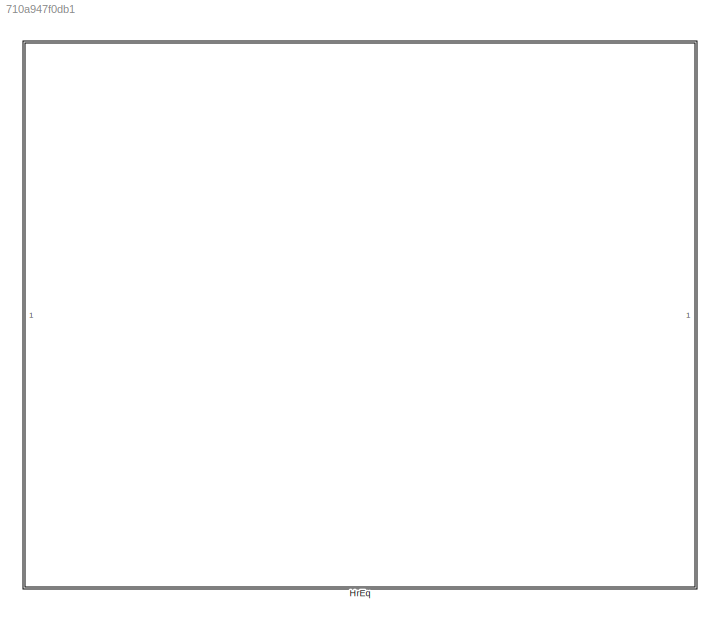
MODEL slx_710a947f0db1
KIND library
CONFIG AbsTol = auto
CONFIG EnableMultiTasking = off
CONFIG FixedStep = auto
CONFIG MaxStep = auto
CONFIG MinStep = auto
CONFIG RelTol = 1e-3
CONFIG SampleTimeConstraint = Unconstrained
CONFIG SolverName = VariableStepAuto
CONFIG StartTime = 0.0
CONFIG StopTime = 10.0
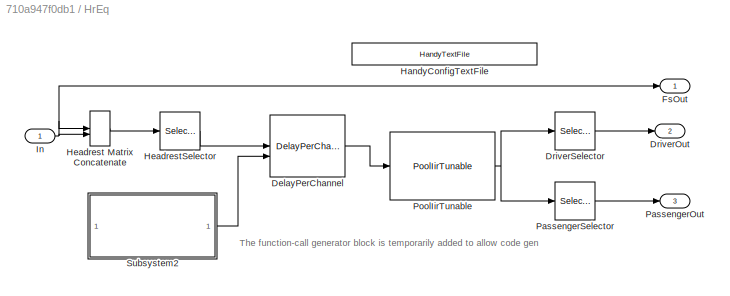
BLOCK [SubSystem] HrEq
BLOCK [Reference] HrEq/DelayPerChannel  REF=TunableDelayBtc/DelayPerChannel
  SourceBlock = TunableDelayBtc/DelayPerChannel
  SourceProductName = Bose Blocklib
  SourceType = Blocklib DelayPerChannel
BLOCK [Outport] HrEq/DriverOut
  Port = 2
  VectorParamsAs1DForOutWhenUnconnected = off
BLOCK [Selector] HrEq/DriverSelector
  IndexOptions = Select all,Index vector (dialog)
  Indices = [1 7],[1:Config.AnnChannelCount]
  InputPortWidth = 3
  NumberOfDimensions = 2
  OutputSizes = 1,1
BLOCK [Outport] HrEq/FsOut
  VectorParamsAs1DForOutWhenUnconnected = off
BLOCK [Reference] HrEq/HandyConfigTextFile  REF=HandyTextFile/HandyTextFile
  SourceBlock = HandyTextFile/HandyTextFile
  SourceProductName = Bose Talaria
  SourceType = Talaria Handy Text File
BLOCK [Concatenate] HrEq/Headrest Matrix Concatenate
  ConcatenateDimension = 2
  Mode = Multidimensional array
BLOCK [Selector] HrEq/HeadrestSelector
  IndexOptions = Select all,Index vector (dialog)
  Indices = [1 7],[1:Config.NumHeadrestSpeakers*Config.AnnChannelCount]
  InputPortWidth = 3
  NumberOfDimensions = 2
  OutputSizes = 1,1
BLOCK [Inport] HrEq/In
BLOCK [Outport] HrEq/PassengerOut 
  Port = 3
  VectorParamsAs1DForOutWhenUnconnected = off
BLOCK [Selector] HrEq/PassengerSelector
  IndexOptions = Select all,Index vector (dialog)
  Indices = [1 7],[(Config.NumHeadrestSpeakers-1)*(Config.AnnChannelCount)+1:Config.NumHeadrestSpeakers*Config.AnnChannelCount]
  InputPortWidth = 3
  NumberOfDimensions = 2
  OutputSizes = 1,1
BLOCK [Reference] HrEq/PoolIirTunable  REF=PoolIir/PoolIirTunable
  SourceBlock = PoolIir/PoolIirTunable
  SourceType = Bose Pool IIR Tunable
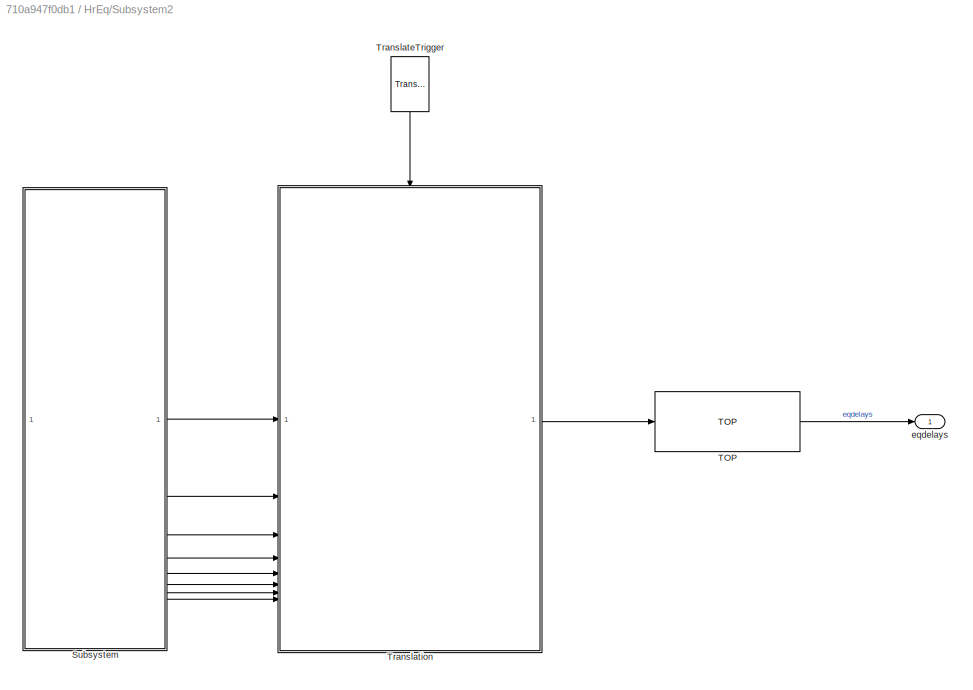
BLOCK [SubSystem] HrEq/Subsystem2
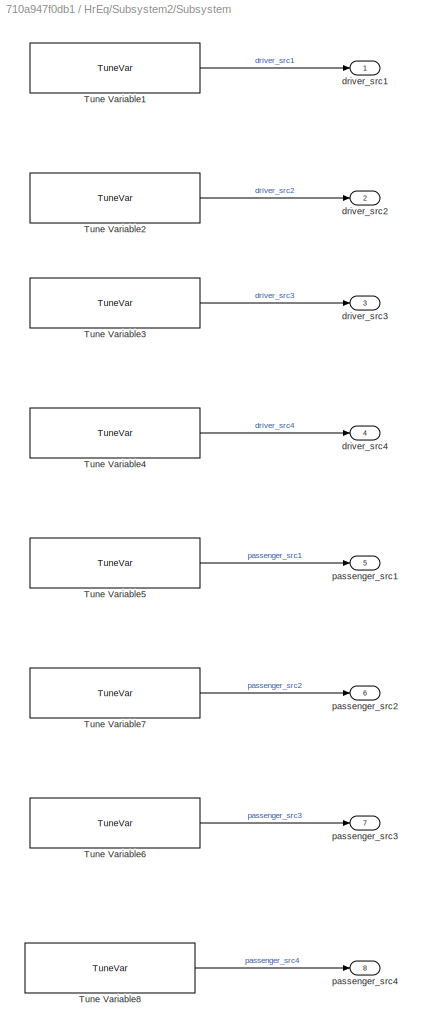
BLOCK [SubSystem] HrEq/Subsystem2/Subsystem
BLOCK [Reference] HrEq/Subsystem2/Subsystem/Tune Variable1  REF=TuneVar/TuneVar
  SourceBlock = TuneVar/TuneVar
  SourceProductName = Bose Talaria
  SourceType = Talaria Tune Variable
BLOCK [Reference] HrEq/Subsystem2/Subsystem/Tune Variable2  REF=TuneVar/TuneVar
  SourceBlock = TuneVar/TuneVar
  SourceProductName = Bose Talaria
  SourceType = Talaria Tune Variable
BLOCK [Reference] HrEq/Subsystem2/Subsystem/Tune Variable3  REF=TuneVar/TuneVar
  SourceBlock = TuneVar/TuneVar
  SourceProductName = Bose Talaria
  SourceType = Talaria Tune Variable
BLOCK [Reference] HrEq/Subsystem2/Subsystem/Tune Variable4  REF=TuneVar/TuneVar
  SourceBlock = TuneVar/TuneVar
  SourceProductName = Bose Talaria
  SourceType = Talaria Tune Variable
BLOCK [Reference] HrEq/Subsystem2/Subsystem/Tune Variable5  REF=TuneVar/TuneVar
  SourceBlock = TuneVar/TuneVar
  SourceProductName = Bose Talaria
  SourceType = Talaria Tune Variable
BLOCK [Reference] HrEq/Subsystem2/Subsystem/Tune Variable6  REF=TuneVar/TuneVar
  SourceBlock = TuneVar/TuneVar
  SourceProductName = Bose Talaria
  SourceType = Talaria Tune Variable
BLOCK [Reference] HrEq/Subsystem2/Subsystem/Tune Variable7  REF=TuneVar/TuneVar
  SourceBlock = TuneVar/TuneVar
  SourceProductName = Bose Talaria
  SourceType = Talaria Tune Variable
BLOCK [Reference] HrEq/Subsystem2/Subsystem/Tune Variable8  REF=TuneVar/TuneVar
  SourceBlock = TuneVar/TuneVar
  SourceProductName = Bose Talaria
  SourceType = Talaria Tune Variable
BLOCK [Outport] HrEq/Subsystem2/Subsystem/driver_src1
BLOCK [Outport] HrEq/Subsystem2/Subsystem/driver_src2
  Port = 2
BLOCK [Outport] HrEq/Subsystem2/Subsystem/driver_src3
  Port = 3
BLOCK [Outport] HrEq/Subsystem2/Subsystem/driver_src4
  Port = 4
BLOCK [Outport] HrEq/Subsystem2/Subsystem/passenger_src1
  Port = 5
BLOCK [Outport] HrEq/Subsystem2/Subsystem/passenger_src2
  Port = 6
BLOCK [Outport] HrEq/Subsystem2/Subsystem/passenger_src3
  Port = 7
BLOCK [Outport] HrEq/Subsystem2/Subsystem/passenger_src4
  Port = 8
BLOCK [Reference] HrEq/Subsystem2/TOP  REF=TOP/TOP
  SourceBlock = TOP/TOP
  SourceProductName = Bose Talaria
  SourceType = Talaria Target Overlay Parameter
BLOCK [Reference] HrEq/Subsystem2/TranslateTrigger  REF=TuneVar/TranslateTrigger
  NameLocation = left
  SourceBlock = TuneVar/TranslateTrigger
  SourceProductName = Bose Talaria
  SourceType = Talaria Translate Trigger
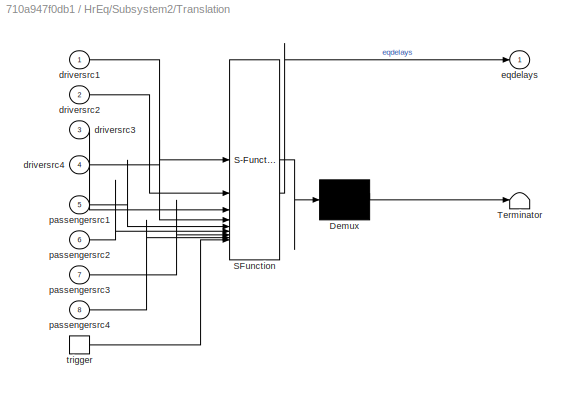
BLOCK [SubSystem] HrEq/Subsystem2/Translation
  ErrorFcn = Stateflow.Translate.translate
  PermitHierarchicalResolution = ExplicitOnly
  SFBlockType = MATLAB Function
  TreatAsAtomicUnit = on
BLOCK [Demux] HrEq/Subsystem2/Translation/ Demux 
  Outputs = 1
BLOCK [S-Function] HrEq/Subsystem2/Translation/ SFunction 
  EnableBusSupport = off
  FunctionName = sf_sfun
  Parameters = AnnChannelCount,NumHeadrestSpeakers
  PortCounts = [9 2]
  SFcnIsStateOwnerBlock = off
  SFunctionDeploymentMode = off
  Tag = Stateflow S-Function 1
BLOCK [Terminator] HrEq/Subsystem2/Translation/ Terminator 
BLOCK [Inport] HrEq/Subsystem2/Translation/driversrc1
BLOCK [Inport] HrEq/Subsystem2/Translation/driversrc2
  Port = 2
BLOCK [Inport] HrEq/Subsystem2/Translation/driversrc3
  Port = 3
BLOCK [Inport] HrEq/Subsystem2/Translation/driversrc4
  Port = 4
BLOCK [Outport] HrEq/Subsystem2/Translation/eqdelays
  VectorParamsAs1DForOutWhenUnconnected = off
BLOCK [Inport] HrEq/Subsystem2/Translation/passengersrc1
  Port = 5
BLOCK [Inport] HrEq/Subsystem2/Translation/passengersrc2
  Port = 6
BLOCK [Inport] HrEq/Subsystem2/Translation/passengersrc3
  Port = 7
BLOCK [Inport] HrEq/Subsystem2/Translation/passengersrc4
  Port = 8
BLOCK [TriggerPort] HrEq/Subsystem2/Translation/trigger
  ShowOutputPort = on
  StatesWhenEnabling = held
  TriggerType = function-call
  VariantControl = Variant
BLOCK [Outport] HrEq/Subsystem2/eqdelays
ANNOTATION HrEq: The function-call generator block is temporarily added to allow code gen
LINE HrEq/DelayPerChannel:1 -> HrEq/PoolIirTunable:1
LINE HrEq/DriverSelector:1 -> HrEq/DriverOut:1
LINE HrEq/Headrest Matrix Concatenate:1 -> HrEq/HeadrestSelector:1
LINE HrEq/HeadrestSelector:1 -> HrEq/DelayPerChannel:1
NET HrEq/In:1 -> HrEq/FsOut:1, HrEq/Headrest Matrix Concatenate:1, HrEq/Headrest Matrix Concatenate:2
LINE HrEq/PassengerSelector:1 -> HrEq/PassengerOut :1
NET HrEq/PoolIirTunable:1 -> HrEq/DriverSelector:1, HrEq/PassengerSelector:1
LINE HrEq/Subsystem2/Subsystem/Tune Variable1:1 -> HrEq/Subsystem2/Subsystem/driver_src1:1
LINE HrEq/Subsystem2/Subsystem/Tune Variable2:1 -> HrEq/Subsystem2/Subsystem/driver_src2:1
LINE HrEq/Subsystem2/Subsystem/Tune Variable3:1 -> HrEq/Subsystem2/Subsystem/driver_src3:1
LINE HrEq/Subsystem2/Subsystem/Tune Variable4:1 -> HrEq/Subsystem2/Subsystem/driver_src4:1
LINE HrEq/Subsystem2/Subsystem/Tune Variable5:1 -> HrEq/Subsystem2/Subsystem/passenger_src1:1
LINE HrEq/Subsystem2/Subsystem/Tune Variable6:1 -> HrEq/Subsystem2/Subsystem/passenger_src3:1
LINE HrEq/Subsystem2/Subsystem/Tune Variable7:1 -> HrEq/Subsystem2/Subsystem/passenger_src2:1
LINE HrEq/Subsystem2/Subsystem/Tune Variable8:1 -> HrEq/Subsystem2/Subsystem/passenger_src4:1
LINE HrEq/Subsystem2/Subsystem:1 -> HrEq/Subsystem2/Translation:1
LINE HrEq/Subsystem2/Subsystem:2 -> HrEq/Subsystem2/Translation:2
LINE HrEq/Subsystem2/Subsystem:3 -> HrEq/Subsystem2/Translation:3
LINE HrEq/Subsystem2/Subsystem:4 -> HrEq/Subsystem2/Translation:4
LINE HrEq/Subsystem2/Subsystem:5 -> HrEq/Subsystem2/Translation:5
LINE HrEq/Subsystem2/Subsystem:6 -> HrEq/Subsystem2/Translation:6
LINE HrEq/Subsystem2/Subsystem:7 -> HrEq/Subsystem2/Translation:7
LINE HrEq/Subsystem2/Subsystem:8 -> HrEq/Subsystem2/Translation:8
LINE HrEq/Subsystem2/TOP:1 -> HrEq/Subsystem2/eqdelays:1
LINE HrEq/Subsystem2/TranslateTrigger:1 -> HrEq/Subsystem2/Translation:trigger
LINE HrEq/Subsystem2/Translation:1 -> HrEq/Subsystem2/TOP:1
LINE HrEq/Subsystem2:1 -> HrEq/DelayPerChannel:2
note: NET lines group one-source signal fan-out (src -> all destinations, sorted); 1:1 wires keep LINE
CHART HrEq/Subsystem2/Translation states=1 transitions=1
  STATE_LABEL 'eML_blk_kernel()'
  STATE_LABEL 'SCRIPT:\nfunction eqdelays  = fcn(driversrc1, driversrc2, driversrc3, driversrc4, passengersrc1, passengersrc2, passengersrc3, passengersrc4, NumHeadrestSpeakers, AnnChannelCount)\n    switch NumHeadrestSpeakers\n        case 1\n            switch AnnChannelCount\n                case 1\n                    eqdelays = single([driversrc1.Value, driversrc2.Value]);\n                case 2\n                 ...<+1094ch>'
CHART  states=0 transitions=0
